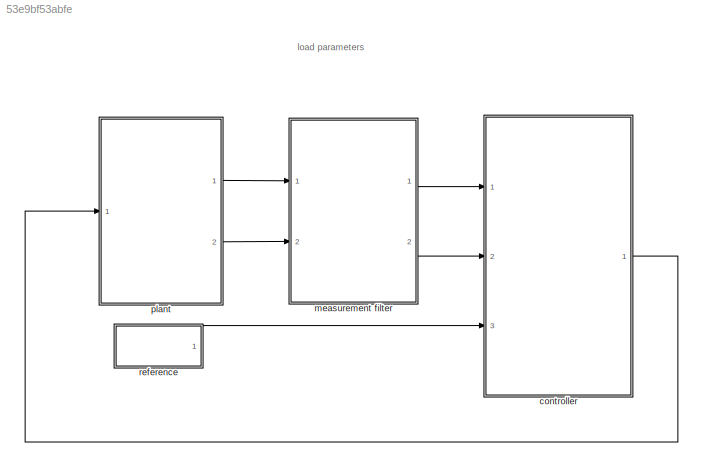
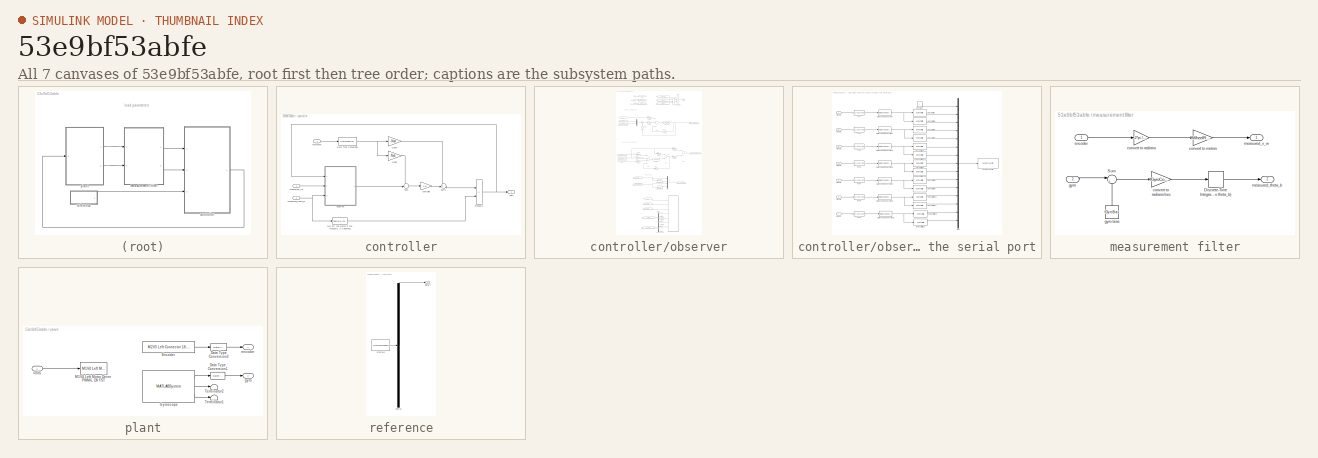
[diagram: thumbnail index - all 7 canvases of the model, root first then tree order]
MODEL slx_53e9bf53abfe
KIND model
CONFIG AbsTol = auto
CONFIG EnableMultiTasking = on
CONFIG FixedStep = auto
CONFIG MaxStep = auto
CONFIG MinStep = auto
CONFIG RelTol = 1e-3
CONFIG SampleTimeConstraint = Unconstrained
CONFIG Solver = ode45
CONFIG SolverName = ode45
CONFIG StartTime = 0.0
CONFIG StopTime = 10.0
BLOCK [SubSystem] controller
  Ports = [3, 1]
  RequestExecContextInheritance = off
  Variant = off
BLOCK [DataTypeConversion] controller/Data Type Conversion
  OutDataTypeStr = single
  RndMeth = Floor
  SaturateOnIntegerOverflow = off
BLOCK [Gain] controller/Gain3
  Gain = Nxd
  Multiplication = Matrix(K*u)
  OutDataTypeStr = Inherit: Inherit via internal rule
  ParamDataTypeStr = Inherit: Inherit via internal rule
  SaturateOnIntegerOverflow = off
BLOCK [Gain] controller/Gain4
  Gain = -Nud
  Multiplication = Matrix(K*u)
  OutDataTypeStr = Inherit: Inherit via internal rule
  ParamDataTypeStr = Inherit: Inherit via internal rule
  SaturateOnIntegerOverflow = off
BLOCK [Product] controller/Product1
  InputSameDT = off
  OutDataTypeStr = Inherit: Inherit via internal rule
  Ports = [2, 1]
  SaturateOnIntegerOverflow = off
BLOCK [Sum] controller/Sum
  IconShape = round
  InputSameDT = off
  Inputs = ++|
  OutDataTypeStr = Inherit: Inherit via internal rule
  Ports = [2, 1]
  SaturateOnIntegerOverflow = off
BLOCK [Sum] controller/Sum1
  IconShape = round
  InputSameDT = off
  Inputs = ++|
  OutDataTypeStr = Inherit: Inherit via internal rule
  Ports = [2, 1]
  SaturateOnIntegerOverflow = off
BLOCK [Gain] controller/controller
  Gain = Kd
  Multiplication = Matrix(K*u)
  OutDataTypeStr = Inherit: Inherit via internal rule
  ParamDataTypeStr = Inherit: Inherit via internal rule
  SaturateOnIntegerOverflow = off
BLOCK [Inport] controller/measured_theta_b 
  IconDisplay = Port number
  Port = 2
BLOCK [Inport] controller/measured_x_w
  IconDisplay = Port number
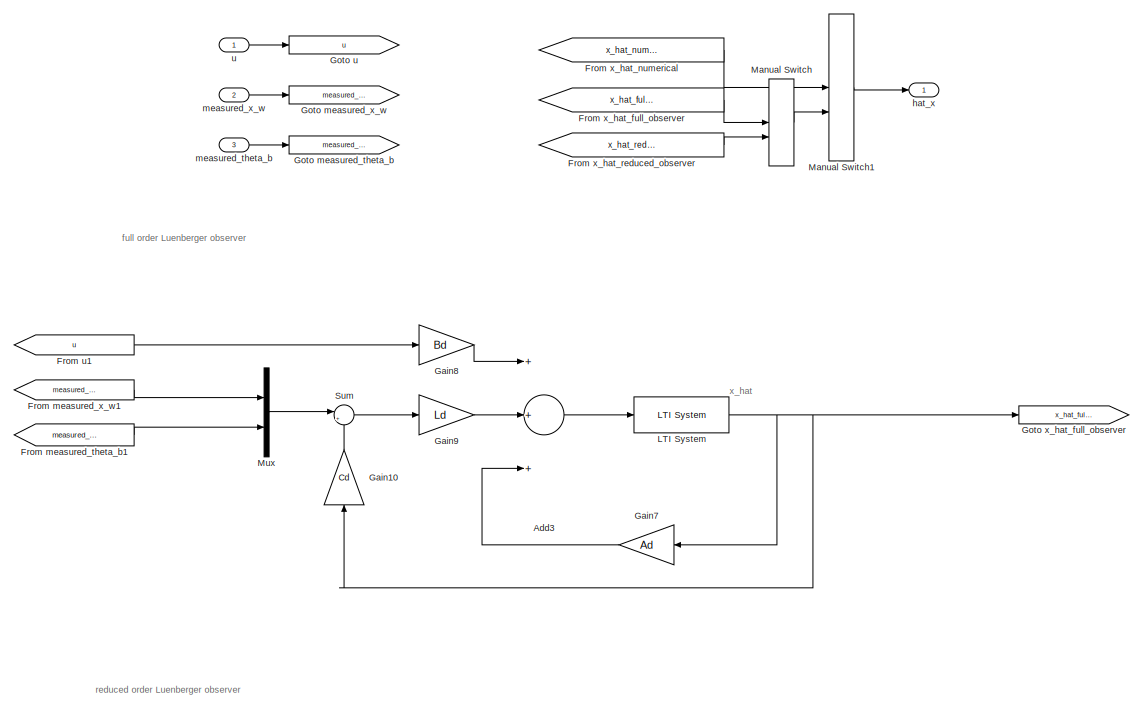
[diagram: controller/observer - part 1/3, full width, top band]
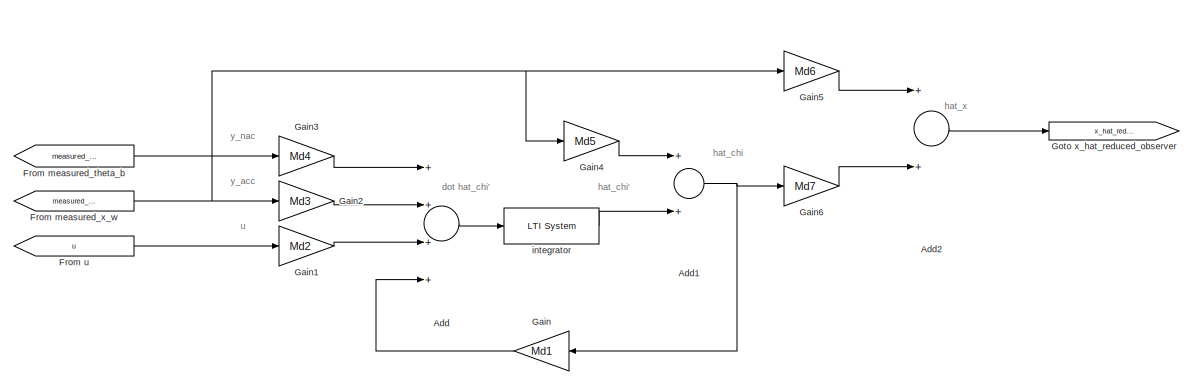
[diagram: controller/observer - part 2/3, full width, middle band]
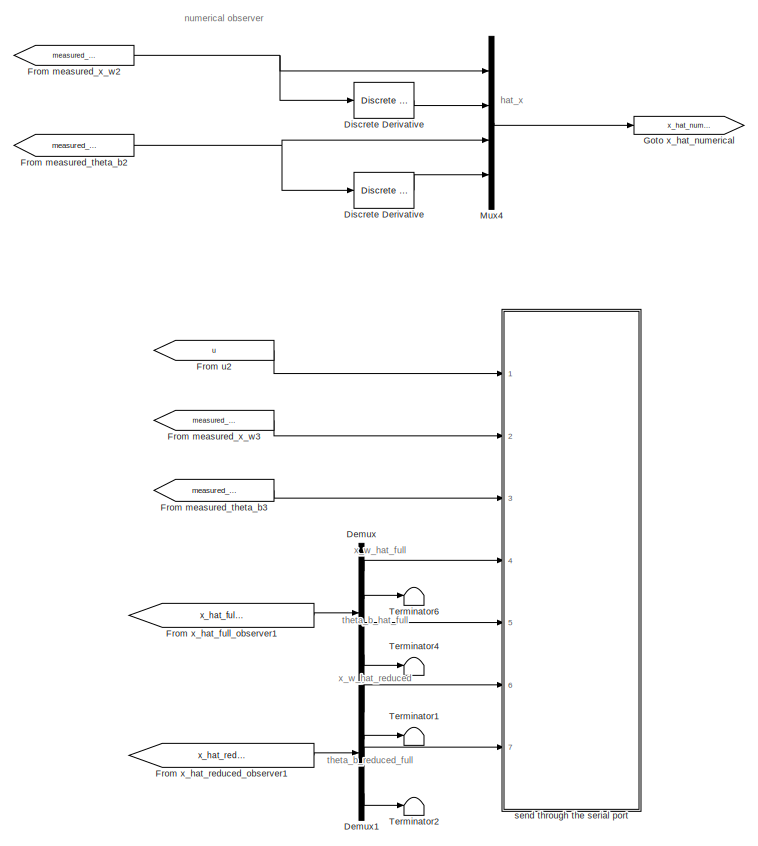
[diagram: controller/observer - part 3/3, bottom center region]
BLOCK [SubSystem] controller/observer
  Ports = [3, 1]
  RequestExecContextInheritance = off
  Variant = off
BLOCK [Sum] controller/observer/Add
  InputSameDT = off
  Inputs = ++++
  OutDataTypeStr = Inherit: Inherit via internal rule
  Ports = [4, 1]
  SaturateOnIntegerOverflow = off
BLOCK [Sum] controller/observer/Add1
  InputSameDT = off
  OutDataTypeStr = Inherit: Inherit via internal rule
  Ports = [2, 1]
  SaturateOnIntegerOverflow = off
BLOCK [Sum] controller/observer/Add2
  InputSameDT = off
  OutDataTypeStr = Inherit: Inherit via internal rule
  Ports = [2, 1]
  SaturateOnIntegerOverflow = off
BLOCK [Sum] controller/observer/Add3
  InputSameDT = off
  Inputs = +++
  OutDataTypeStr = Inherit: Inherit via internal rule
  Ports = [3, 1]
  SaturateOnIntegerOverflow = off
BLOCK [Demux] controller/observer/Demux
  DisplayOption = bar
  Ports = [1, 4]
BLOCK [Demux] controller/observer/Demux1
  DisplayOption = bar
  Ports = [1, 4]
BLOCK [Reference] controller/observer/Discrete Derivative  REF=simulink/Discrete/Discrete Derivative
  Ports = [1, 1]
  SourceBlock = simulink/Discrete/Discrete Derivative
  SourceProductBaseCode = SL
  SourceProductName = Simulink
  SourceType = Discrete Derivative
BLOCK [Reference] controller/observer/Discrete Derivative   REF=simulink/Discrete/Discrete Derivative
  Ports = [1, 1]
  SourceBlock = simulink/Discrete/Discrete Derivative
  SourceProductBaseCode = SL
  SourceProductName = Simulink
  SourceType = Discrete Derivative
BLOCK [From] controller/observer/From measured_theta_b
  GotoTag = measured_theta_b
BLOCK [From] controller/observer/From measured_theta_b1
  GotoTag = measured_theta_b
BLOCK [From] controller/observer/From measured_theta_b2
  GotoTag = measured_theta_b
BLOCK [From] controller/observer/From measured_theta_b3
  GotoTag = measured_theta_b
BLOCK [From] controller/observer/From measured_x_w
  GotoTag = measured_x_w
BLOCK [From] controller/observer/From measured_x_w1
  GotoTag = measured_x_w
BLOCK [From] controller/observer/From measured_x_w2
  GotoTag = measured_x_w
BLOCK [From] controller/observer/From measured_x_w3
  GotoTag = measured_x_w
BLOCK [From] controller/observer/From u
  GotoTag = u
BLOCK [From] controller/observer/From u1
  GotoTag = u
BLOCK [From] controller/observer/From u2
  GotoTag = u
BLOCK [From] controller/observer/From x_hat_full_observer
  GotoTag = x_hat_full_observer
BLOCK [From] controller/observer/From x_hat_full_observer1
  GotoTag = x_hat_full_observer
BLOCK [From] controller/observer/From x_hat_numerical
  GotoTag = x_hat_numerical
BLOCK [From] controller/observer/From x_hat_reduced_observer
  GotoTag = x_hat_reduced_observer
BLOCK [From] controller/observer/From x_hat_reduced_observer1
  GotoTag = x_hat_reduced_observer
BLOCK [Gain] controller/observer/Gain
  Gain = Md1
  Multiplication = Matrix(K*u)
  OutDataTypeStr = Inherit: Inherit via internal rule
  ParamDataTypeStr = Inherit: Inherit via internal rule
  SaturateOnIntegerOverflow = off
BLOCK [Gain] controller/observer/Gain1
  Gain = Md2
  Multiplication = Matrix(K*u)
  OutDataTypeStr = Inherit: Inherit via internal rule
  ParamDataTypeStr = Inherit: Inherit via internal rule
  SaturateOnIntegerOverflow = off
BLOCK [Gain] controller/observer/Gain10
  Gain = Cd
  Multiplication = Matrix(K*u)
  OutDataTypeStr = Inherit: Inherit via internal rule
  ParamDataTypeStr = Inherit: Inherit via internal rule
  SaturateOnIntegerOverflow = off
BLOCK [Gain] controller/observer/Gain2
  Gain = Md3
  Multiplication = Matrix(K*u)
  OutDataTypeStr = Inherit: Inherit via internal rule
  ParamDataTypeStr = Inherit: Inherit via internal rule
  SaturateOnIntegerOverflow = off
BLOCK [Gain] controller/observer/Gain3
  Gain = Md4
  Multiplication = Matrix(K*u)
  OutDataTypeStr = Inherit: Inherit via internal rule
  ParamDataTypeStr = Inherit: Inherit via internal rule
  SaturateOnIntegerOverflow = off
BLOCK [Gain] controller/observer/Gain4
  Gain = Md5
  Multiplication = Matrix(K*u)
  OutDataTypeStr = Inherit: Inherit via internal rule
  ParamDataTypeStr = Inherit: Inherit via internal rule
  SaturateOnIntegerOverflow = off
BLOCK [Gain] controller/observer/Gain5
  Gain = Md6
  Multiplication = Matrix(K*u)
  OutDataTypeStr = Inherit: Inherit via internal rule
  ParamDataTypeStr = Inherit: Inherit via internal rule
  SaturateOnIntegerOverflow = off
BLOCK [Gain] controller/observer/Gain6
  Gain = Md7
  Multiplication = Matrix(K*u)
  OutDataTypeStr = Inherit: Inherit via internal rule
  ParamDataTypeStr = Inherit: Inherit via internal rule
  SaturateOnIntegerOverflow = off
BLOCK [Gain] controller/observer/Gain7
  Gain = Ad
  Multiplication = Matrix(K*u)
  OutDataTypeStr = Inherit: Inherit via internal rule
  ParamDataTypeStr = Inherit: Inherit via internal rule
  SaturateOnIntegerOverflow = off
BLOCK [Gain] controller/observer/Gain8
  Gain = Bd
  Multiplication = Matrix(K*u)
  OutDataTypeStr = Inherit: Inherit via internal rule
  ParamDataTypeStr = Inherit: Inherit via internal rule
  SaturateOnIntegerOverflow = off
BLOCK [Gain] controller/observer/Gain9
  Gain = Ld
  Multiplication = Matrix(K*u)
  OutDataTypeStr = Inherit: Inherit via internal rule
  ParamDataTypeStr = Inherit: Inherit via internal rule
  SaturateOnIntegerOverflow = off
BLOCK [Goto] controller/observer/Goto measured_theta_b
  GotoTag = measured_theta_b
BLOCK [Goto] controller/observer/Goto measured_x_w
  GotoTag = measured_x_w
BLOCK [Goto] controller/observer/Goto u
  GotoTag = u
BLOCK [Goto] controller/observer/Goto x_hat_full_observer
  GotoTag = x_hat_full_observer
BLOCK [Goto] controller/observer/Goto x_hat_numerical
  GotoTag = x_hat_numerical
BLOCK [Goto] controller/observer/Goto x_hat_reduced_observer
  GotoTag = x_hat_reduced_observer
BLOCK [Reference] controller/observer/LTI System  REF=cstblocks/LTI System
  Ports = [1, 1]
  SourceBlock = cstblocks/LTI System
  SourceProductBaseCode = CT
  SourceProductName = Control System Toolbox
  SourceType = LTI Block
BLOCK [ManualSwitch] controller/observer/Manual Switch
BLOCK [ManualSwitch] controller/observer/Manual Switch1
BLOCK [Mux] controller/observer/Mux
  DisplayOption = bar
  Inputs = 2
  Ports = [2, 1]
BLOCK [Mux] controller/observer/Mux4
  DisplayOption = bar
  Ports = [4, 1]
BLOCK [Sum] controller/observer/Sum
  IconShape = round
  InputSameDT = off
  Inputs = |+-
  OutDataTypeStr = Inherit: Inherit via internal rule
  Ports = [2, 1]
  SaturateOnIntegerOverflow = off
BLOCK [Terminator] controller/observer/Terminator1
BLOCK [Terminator] controller/observer/Terminator2
BLOCK [Terminator] controller/observer/Terminator4
BLOCK [Terminator] controller/observer/Terminator6
BLOCK [Outport] controller/observer/hat_x
  IconDisplay = Port number
BLOCK [Reference] controller/observer/integrator  REF=cstblocks/LTI System
  Ports = [1, 1]
  SourceBlock = cstblocks/LTI System
  SourceProductBaseCode = CT
  SourceProductName = Control System Toolbox
  SourceType = LTI Block
BLOCK [Inport] controller/observer/measured_theta_b
  IconDisplay = Port number
  Port = 3
BLOCK [Inport] controller/observer/measured_x_w
  IconDisplay = Port number
  Port = 2
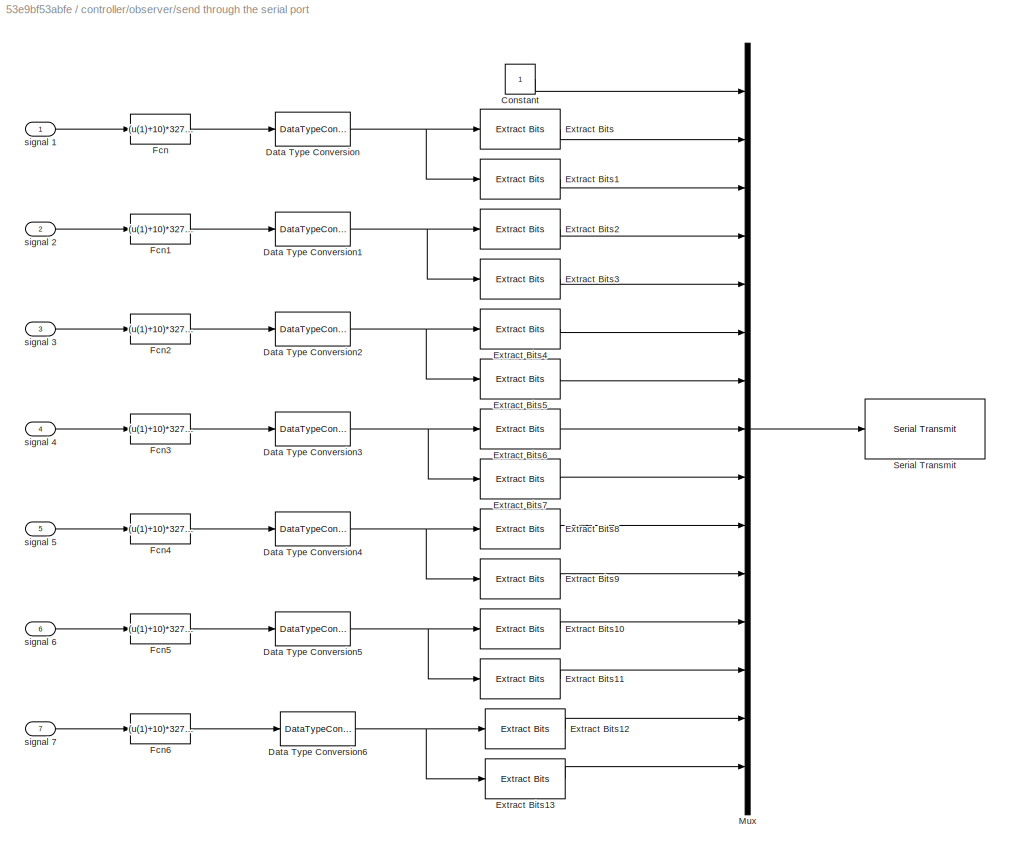
BLOCK [SubSystem] controller/observer/send through the serial port
  Ports = [7]
  RequestExecContextInheritance = off
  Variant = off
BLOCK [Constant] controller/observer/send through the serial port/Constant
  OutDataTypeStr = uint8
BLOCK [DataTypeConversion] controller/observer/send through the serial port/Data Type Conversion
  OutDataTypeStr = uint16
  RndMeth = Floor
  SaturateOnIntegerOverflow = off
BLOCK [DataTypeConversion] controller/observer/send through the serial port/Data Type Conversion1
  OutDataTypeStr = uint16
  RndMeth = Floor
  SaturateOnIntegerOverflow = off
BLOCK [DataTypeConversion] controller/observer/send through the serial port/Data Type Conversion2
  OutDataTypeStr = uint16
  RndMeth = Floor
  SaturateOnIntegerOverflow = off
BLOCK [DataTypeConversion] controller/observer/send through the serial port/Data Type Conversion3
  OutDataTypeStr = uint16
  RndMeth = Floor
  SaturateOnIntegerOverflow = off
BLOCK [DataTypeConversion] controller/observer/send through the serial port/Data Type Conversion4
  OutDataTypeStr = uint16
  RndMeth = Floor
  SaturateOnIntegerOverflow = off
BLOCK [DataTypeConversion] controller/observer/send through the serial port/Data Type Conversion5
  OutDataTypeStr = uint16
  RndMeth = Floor
  SaturateOnIntegerOverflow = off
BLOCK [DataTypeConversion] controller/observer/send through the serial port/Data Type Conversion6
  OutDataTypeStr = uint16
  RndMeth = Floor
  SaturateOnIntegerOverflow = off
BLOCK [Reference] controller/observer/send through the serial port/Extract Bits  REF=simulink/Logic and Bit
Operations/Extract Bits
  Ports = [1, 1]
  SourceBlock = simulink/Logic and Bit\nOperations/Extract Bits
  SourceProductBaseCode = SL
  SourceProductName = Simulink
  SourceType = Extract Bits
BLOCK [Reference] controller/observer/send through the serial port/Extract Bits1  REF=simulink/Logic and Bit
Operations/Extract Bits
  Ports = [1, 1]
  SourceBlock = simulink/Logic and Bit\nOperations/Extract Bits
  SourceProductBaseCode = SL
  SourceProductName = Simulink
  SourceType = Extract Bits
BLOCK [Reference] controller/observer/send through the serial port/Extract Bits10  REF=simulink/Logic and Bit
Operations/Extract Bits
  Ports = [1, 1]
  SourceBlock = simulink/Logic and Bit\nOperations/Extract Bits
  SourceProductBaseCode = SL
  SourceProductName = Simulink
  SourceType = Extract Bits
BLOCK [Reference] controller/observer/send through the serial port/Extract Bits11  REF=simulink/Logic and Bit
Operations/Extract Bits
  Ports = [1, 1]
  SourceBlock = simulink/Logic and Bit\nOperations/Extract Bits
  SourceProductBaseCode = SL
  SourceProductName = Simulink
  SourceType = Extract Bits
BLOCK [Reference] controller/observer/send through the serial port/Extract Bits12  REF=simulink/Logic and Bit
Operations/Extract Bits
  Ports = [1, 1]
  SourceBlock = simulink/Logic and Bit\nOperations/Extract Bits
  SourceProductBaseCode = SL
  SourceProductName = Simulink
  SourceType = Extract Bits
BLOCK [Reference] controller/observer/send through the serial port/Extract Bits13  REF=simulink/Logic and Bit
Operations/Extract Bits
  Ports = [1, 1]
  SourceBlock = simulink/Logic and Bit\nOperations/Extract Bits
  SourceProductBaseCode = SL
  SourceProductName = Simulink
  SourceType = Extract Bits
BLOCK [Reference] controller/observer/send through the serial port/Extract Bits2  REF=simulink/Logic and Bit
Operations/Extract Bits
  Ports = [1, 1]
  SourceBlock = simulink/Logic and Bit\nOperations/Extract Bits
  SourceProductBaseCode = SL
  SourceProductName = Simulink
  SourceType = Extract Bits
BLOCK [Reference] controller/observer/send through the serial port/Extract Bits3  REF=simulink/Logic and Bit
Operations/Extract Bits
  Ports = [1, 1]
  SourceBlock = simulink/Logic and Bit\nOperations/Extract Bits
  SourceProductBaseCode = SL
  SourceProductName = Simulink
  SourceType = Extract Bits
BLOCK [Reference] controller/observer/send through the serial port/Extract Bits4  REF=simulink/Logic and Bit
Operations/Extract Bits
  Ports = [1, 1]
  SourceBlock = simulink/Logic and Bit\nOperations/Extract Bits
  SourceProductBaseCode = SL
  SourceProductName = Simulink
  SourceType = Extract Bits
BLOCK [Reference] controller/observer/send through the serial port/Extract Bits5  REF=simulink/Logic and Bit
Operations/Extract Bits
  Ports = [1, 1]
  SourceBlock = simulink/Logic and Bit\nOperations/Extract Bits
  SourceProductBaseCode = SL
  SourceProductName = Simulink
  SourceType = Extract Bits
BLOCK [Reference] controller/observer/send through the serial port/Extract Bits6  REF=simulink/Logic and Bit
Operations/Extract Bits
  Ports = [1, 1]
  SourceBlock = simulink/Logic and Bit\nOperations/Extract Bits
  SourceProductBaseCode = SL
  SourceProductName = Simulink
  SourceType = Extract Bits
BLOCK [Reference] controller/observer/send through the serial port/Extract Bits7  REF=simulink/Logic and Bit
Operations/Extract Bits
  Ports = [1, 1]
  SourceBlock = simulink/Logic and Bit\nOperations/Extract Bits
  SourceProductBaseCode = SL
  SourceProductName = Simulink
  SourceType = Extract Bits
BLOCK [Reference] controller/observer/send through the serial port/Extract Bits8  REF=simulink/Logic and Bit
Operations/Extract Bits
  Ports = [1, 1]
  SourceBlock = simulink/Logic and Bit\nOperations/Extract Bits
  SourceProductBaseCode = SL
  SourceProductName = Simulink
  SourceType = Extract Bits
BLOCK [Reference] controller/observer/send through the serial port/Extract Bits9  REF=simulink/Logic and Bit
Operations/Extract Bits
  Ports = [1, 1]
  SourceBlock = simulink/Logic and Bit\nOperations/Extract Bits
  SourceProductBaseCode = SL
  SourceProductName = Simulink
  SourceType = Extract Bits
BLOCK [Fcn] controller/observer/send through the serial port/Fcn
  Expr = (u(1)+10)*3276.8
BLOCK [Fcn] controller/observer/send through the serial port/Fcn1
  Expr = (u(1)+10)*3276.8
BLOCK [Fcn] controller/observer/send through the serial port/Fcn2
  Expr = (u(1)+10)*3276.8
BLOCK [Fcn] controller/observer/send through the serial port/Fcn3
  Expr = (u(1)+10)*3276.8
BLOCK [Fcn] controller/observer/send through the serial port/Fcn4
  Expr = (u(1)+10)*3276.8
BLOCK [Fcn] controller/observer/send through the serial port/Fcn5
  Expr = (u(1)+10)*3276.8
BLOCK [Fcn] controller/observer/send through the serial port/Fcn6
  Expr = (u(1)+10)*3276.8
BLOCK [Mux] controller/observer/send through the serial port/Mux
  DisplayOption = bar
  Inputs = 15
  Ports = [15, 1]
BLOCK [Reference] controller/observer/send through the serial port/Serial Transmit  REF=arduinolib/Serial Transmit
  Ports = [1]
  SourceBlock = arduinolib/Serial Transmit
  SourceProductBaseCode = ARDUINO
  SourceProductName = Simulink Support Package for Arduino Hardware
  SourceType = Arduino Serial Transmit
BLOCK [Inport] controller/observer/send through the serial port/signal 1
  IconDisplay = Port number
BLOCK [Inport] controller/observer/send through the serial port/signal 2
  IconDisplay = Port number
  Port = 2
BLOCK [Inport] controller/observer/send through the serial port/signal 3
  IconDisplay = Port number
  Port = 3
BLOCK [Inport] controller/observer/send through the serial port/signal 4
  IconDisplay = Port number
  Port = 4
BLOCK [Inport] controller/observer/send through the serial port/signal 5
  IconDisplay = Port number
  Port = 5
BLOCK [Inport] controller/observer/send through the serial port/signal 6
  IconDisplay = Port number
  Port = 6
BLOCK [Inport] controller/observer/send through the serial port/signal 7
  IconDisplay = Port number
  Port = 7
BLOCK [Inport] controller/observer/u
  IconDisplay = Port number
BLOCK [Inport] controller/reference
  IconDisplay = Port number
  Port = 3
BLOCK [Fcn] controller/turn off the motor if the measured angle is greater than X degrees
  Expr = (abs(u(1))<0.75)
BLOCK [Outport] controller/volts
  IconDisplay = Port number
BLOCK [SubSystem] measurement filter
  Ports = [2, 2]
  RequestExecContextInheritance = off
  Variant = off
BLOCK [DiscreteIntegrator] measurement filter/Discrete-Time Integrator (convert from theta_b_dot to theta_b)
  ICPrevOutput = DiscIntNeverNeededParam
  ICPrevScaledInput = DiscIntNeverNeededParam
  OutDataTypeStr = Inherit: Inherit via back propagation
  Ports = [1, 1]
  SampleTime = fSamplingPeriod
BLOCK [Sum] measurement filter/Sum
  IconShape = round
  InputSameDT = off
  Inputs = |+-
  OutDataTypeStr = Inherit: Inherit via internal rule
  Ports = [2, 1]
  SaturateOnIntegerOverflow = off
BLOCK [Gain] measurement filter/convert to meters
  Gain = fWheelRadius
  ParamDataTypeStr = Inherit: Inherit via internal rule
  SaturateOnIntegerOverflow = off
BLOCK [Gain] measurement filter/convert to radians
  Gain = -2*pi / iNumberOfEncoderSteps
  ParamDataTypeStr = Inherit: Inherit via internal rule
  SaturateOnIntegerOverflow = off
BLOCK [Gain] measurement filter/convert to radians//sec
  Gain = fGyroConversionFactor * pi / 180
  ParamDataTypeStr = Inherit: Inherit via internal rule
  SaturateOnIntegerOverflow = off
BLOCK [Inport] measurement filter/encoder
  IconDisplay = Port number
BLOCK [Inport] measurement filter/gyro
  IconDisplay = Port number
  Port = 2
BLOCK [Constant] measurement filter/gyro bias
  OutDataTypeStr = single
  Value = fGyroBias
BLOCK [Outport] measurement filter/measured_theta_b
  IconDisplay = Port number
  Port = 2
BLOCK [Outport] measurement filter/measured_x_w
  IconDisplay = Port number
BLOCK [SubSystem] plant
  Ports = [1, 2]
  RequestExecContextInheritance = off
  Variant = off
BLOCK [DataTypeConversion] plant/Data Type Conversion1
  OutDataTypeStr = single
  RndMeth = Floor
  SaturateOnIntegerOverflow = off
BLOCK [DataTypeConversion] plant/Data Type Conversion2
  OutDataTypeStr = single
  RndMeth = Floor
  SaturateOnIntegerOverflow = off
BLOCK [Reference] plant/Encoder  REF=MinSegLibrary_M2V3/M2V3 Left Connector 18, 19
  Ports = [0, 1]
  SourceBlock = MinSegLibrary_M2V3/M2V3 Left Connector 18, 19
  SourceProductName = Rensselaer Arduino Support Package
  SourceType = Encoder_arduino
BLOCK [MATLABSystem] plant/Gyroscope
  DLPFmode = 0
  MaskDisplay = disp('soMPU6050Gyro');\nport_label('output',1,'xvel');\nport_label('output',2,'yvel');\nport_label('output',3,'zvel');
  MaskType = soMPU6050Gyro
  Ports = [0, 3]
  System = soMPU6050Gyro
BLOCK [Reference] plant/M1V4 Left Motor Driver PWM6, D8 FST  REF=MinSegLibrary_M2V3/M1V4 Left Motor Driver
PWM6, D8 FST
  Ports = [1]
  SourceBlock = MinSegLibrary_M2V3/M1V4 Left Motor Driver\nPWM6, D8 FST
  SourceProductName = Rensselaer Arduino Support Package
BLOCK [Terminator] plant/Terminator1
BLOCK [Terminator] plant/Terminator2
BLOCK [Outport] plant/encoder
  IconDisplay = Port number
BLOCK [Outport] plant/gyro
  IconDisplay = Port number
  Port = 2
BLOCK [Inport] plant/volts
  IconDisplay = Port number
BLOCK [SubSystem] reference
  ClipboardFcn = sigbuilder_block('clipboard');
  CloseFcn = sigbuilder_block('close');
  ContinueFcn = sigbuilder_block('continue');
  CopyFcn = sigbuilder_block('copy');
  DeleteFcn = sigbuilder_block('delete');
  LoadFcn = sigbuilder_block('load');
  MaskHideContents = on
  ModelCloseFcn = sigbuilder_block('modelClose');
  NameChangeFcn = sigbuilder_block('namechange');
  OpenFcn = sigbuilder_block('open',[437.6 199.2 550.4 400 ]);
  PauseFcn = sigbuilder_block('pause');
  Ports = [0, 1]
  PreSaveFcn = sigbuilder_block('preSave');
  RequestExecContextInheritance = off
  StartFcn = sigbuilder_block('start');
  StopFcn = sigbuilder_block('stop');
  Tag = STV Subsys
  Variant = off
BLOCK [Demux] reference/Demux
  Outputs = 1
  Ports = [1, 1]
  Tag = STV Demux
BLOCK [FromWorkspace] reference/FromWs
  SampleTime = 0
  Tag = STV FromWs
  VariableName = tuvar
  ZeroCross = on
BLOCK [Outport] reference/Signal 1
  IconDisplay = Port number
  Tag = STV Outport
ANNOTATION (root): load parameters
ANNOTATION controller/observer: dot hat_chi'
ANNOTATION controller/observer: full order Luenberger observer
ANNOTATION controller/observer: hat_chi
ANNOTATION controller/observer: hat_chi'
ANNOTATION controller/observer: hat_x
ANNOTATION controller/observer: numerical observer
ANNOTATION controller/observer: reduced order Luenberger observer
ANNOTATION controller/observer: theta_b_hat_full
ANNOTATION controller/observer: theta_b_reduced_full
ANNOTATION controller/observer: u
ANNOTATION controller/observer: x_hat
ANNOTATION controller/observer: x_w_hat_full
ANNOTATION controller/observer: x_w_hat_reduced
ANNOTATION controller/observer: y_acc
ANNOTATION controller/observer: y_nac
NET controller/Data Type Conversion:1 -> controller/Gain3:1, controller/Gain4:1
LINE controller/Gain3:1 -> controller/Sum:1
LINE controller/Gain4:1 -> controller/Sum1:1
NET controller/Product1:1 -> controller/observer:1, controller/volts:1
LINE controller/Sum1:1 -> controller/Product1:1
LINE controller/Sum:1 -> controller/controller:1
LINE controller/controller:1 -> controller/Sum1:2
NET controller/measured_theta_b :1 -> controller/observer:3, controller/turn off the motor if the measured angle is greater than X degrees:1
LINE controller/measured_x_w:1 -> controller/observer:2
NET controller/observer/Add1:1 -> controller/observer/Gain6:1, controller/observer/Gain:1
LINE controller/observer/Add2:1 -> controller/observer/Goto x_hat_reduced_observer:1
LINE controller/observer/Add3:1 -> controller/observer/LTI System:1
LINE controller/observer/Add:1 -> controller/observer/integrator:1
LINE controller/observer/Demux1:1 -> controller/observer/send through the serial port:6
LINE controller/observer/Demux1:2 -> controller/observer/Terminator1:1
LINE controller/observer/Demux1:3 -> controller/observer/send through the serial port:7
LINE controller/observer/Demux1:4 -> controller/observer/Terminator2:1
LINE controller/observer/Demux:1 -> controller/observer/send through the serial port:4
LINE controller/observer/Demux:2 -> controller/observer/Terminator6:1
LINE controller/observer/Demux:3 -> controller/observer/send through the serial port:5
LINE controller/observer/Demux:4 -> controller/observer/Terminator4:1
LINE controller/observer/Discrete Derivative :1 -> controller/observer/Mux4:4
LINE controller/observer/Discrete Derivative:1 -> controller/observer/Mux4:2
LINE controller/observer/From measured_theta_b1:1 -> controller/observer/Mux:2
NET controller/observer/From measured_theta_b2:1 -> controller/observer/Discrete Derivative :1, controller/observer/Mux4:3
LINE controller/observer/From measured_theta_b3:1 -> controller/observer/send through the serial port:3
LINE controller/observer/From measured_theta_b:1 -> controller/observer/Gain3:1
LINE controller/observer/From measured_x_w1:1 -> controller/observer/Mux:1
NET controller/observer/From measured_x_w2:1 -> controller/observer/Discrete Derivative:1, controller/observer/Mux4:1
LINE controller/observer/From measured_x_w3:1 -> controller/observer/send through the serial port:2
NET controller/observer/From measured_x_w:1 -> controller/observer/Gain2:1, controller/observer/Gain4:1, controller/observer/Gain5:1
LINE controller/observer/From u1:1 -> controller/observer/Gain8:1
LINE controller/observer/From u2:1 -> controller/observer/send through the serial port:1
LINE controller/observer/From u:1 -> controller/observer/Gain1:1
LINE controller/observer/From x_hat_full_observer1:1 -> controller/observer/Demux:1
LINE controller/observer/From x_hat_full_observer:1 -> controller/observer/Manual Switch:1
LINE controller/observer/From x_hat_numerical:1 -> controller/observer/Manual Switch1:1
LINE controller/observer/From x_hat_reduced_observer1:1 -> controller/observer/Demux1:1
LINE controller/observer/From x_hat_reduced_observer:1 -> controller/observer/Manual Switch:2
LINE controller/observer/Gain10:1 -> controller/observer/Sum:2
LINE controller/observer/Gain1:1 -> controller/observer/Add:3
LINE controller/observer/Gain2:1 -> controller/observer/Add:2
LINE controller/observer/Gain3:1 -> controller/observer/Add:1
LINE controller/observer/Gain4:1 -> controller/observer/Add1:1
LINE controller/observer/Gain5:1 -> controller/observer/Add2:1
LINE controller/observer/Gain6:1 -> controller/observer/Add2:2
LINE controller/observer/Gain7:1 -> controller/observer/Add3:3
LINE controller/observer/Gain8:1 -> controller/observer/Add3:1
LINE controller/observer/Gain9:1 -> controller/observer/Add3:2
LINE controller/observer/Gain:1 -> controller/observer/Add:4
NET controller/observer/LTI System:1 -> controller/observer/Gain10:1, controller/observer/Gain7:1, controller/observer/Goto x_hat_full_observer:1
LINE controller/observer/Manual Switch1:1 -> controller/observer/hat_x:1
LINE controller/observer/Manual Switch:1 -> controller/observer/Manual Switch1:2
LINE controller/observer/Mux4:1 -> controller/observer/Goto x_hat_numerical:1
LINE controller/observer/Mux:1 -> controller/observer/Sum:1
LINE controller/observer/Sum:1 -> controller/observer/Gain9:1
LINE controller/observer/integrator:1 -> controller/observer/Add1:2
LINE controller/observer/measured_theta_b:1 -> controller/observer/Goto measured_theta_b:1
LINE controller/observer/measured_x_w:1 -> controller/observer/Goto measured_x_w:1
LINE controller/observer/send through the serial port/Constant:1 -> controller/observer/send through the serial port/Mux:1
NET controller/observer/send through the serial port/Data Type Conversion1:1 -> controller/observer/send through the serial port/Extract Bits2:1, controller/observer/send through the serial port/Extract Bits3:1
NET controller/observer/send through the serial port/Data Type Conversion2:1 -> controller/observer/send through the serial port/Extract Bits4:1, controller/observer/send through the serial port/Extract Bits5:1
NET controller/observer/send through the serial port/Data Type Conversion3:1 -> controller/observer/send through the serial port/Extract Bits6:1, controller/observer/send through the serial port/Extract Bits7:1
NET controller/observer/send through the serial port/Data Type Conversion4:1 -> controller/observer/send through the serial port/Extract Bits8:1, controller/observer/send through the serial port/Extract Bits9:1
NET controller/observer/send through the serial port/Data Type Conversion5:1 -> controller/observer/send through the serial port/Extract Bits10:1, controller/observer/send through the serial port/Extract Bits11:1
NET controller/observer/send through the serial port/Data Type Conversion6:1 -> controller/observer/send through the serial port/Extract Bits12:1, controller/observer/send through the serial port/Extract Bits13:1
NET controller/observer/send through the serial port/Data Type Conversion:1 -> controller/observer/send through the serial port/Extract Bits1:1, controller/observer/send through the serial port/Extract Bits:1
LINE controller/observer/send through the serial port/Extract Bits10:1 -> controller/observer/send through the serial port/Mux:12
LINE controller/observer/send through the serial port/Extract Bits11:1 -> controller/observer/send through the serial port/Mux:13
LINE controller/observer/send through the serial port/Extract Bits12:1 -> controller/observer/send through the serial port/Mux:14
LINE controller/observer/send through the serial port/Extract Bits13:1 -> controller/observer/send through the serial port/Mux:15
LINE controller/observer/send through the serial port/Extract Bits1:1 -> controller/observer/send through the serial port/Mux:3
LINE controller/observer/send through the serial port/Extract Bits2:1 -> controller/observer/send through the serial port/Mux:4
LINE controller/observer/send through the serial port/Extract Bits3:1 -> controller/observer/send through the serial port/Mux:5
LINE controller/observer/send through the serial port/Extract Bits4:1 -> controller/observer/send through the serial port/Mux:6
LINE controller/observer/send through the serial port/Extract Bits5:1 -> controller/observer/send through the serial port/Mux:7
LINE controller/observer/send through the serial port/Extract Bits6:1 -> controller/observer/send through the serial port/Mux:8
LINE controller/observer/send through the serial port/Extract Bits7:1 -> controller/observer/send through the serial port/Mux:9
LINE controller/observer/send through the serial port/Extract Bits8:1 -> controller/observer/send through the serial port/Mux:10
LINE controller/observer/send through the serial port/Extract Bits9:1 -> controller/observer/send through the serial port/Mux:11
LINE controller/observer/send through the serial port/Extract Bits:1 -> controller/observer/send through the serial port/Mux:2
LINE controller/observer/send through the serial port/Fcn1:1 -> controller/observer/send through the serial port/Data Type Conversion1:1
LINE controller/observer/send through the serial port/Fcn2:1 -> controller/observer/send through the serial port/Data Type Conversion2:1
LINE controller/observer/send through the serial port/Fcn3:1 -> controller/observer/send through the serial port/Data Type Conversion3:1
LINE controller/observer/send through the serial port/Fcn4:1 -> controller/observer/send through the serial port/Data Type Conversion4:1
LINE controller/observer/send through the serial port/Fcn5:1 -> controller/observer/send through the serial port/Data Type Conversion5:1
LINE controller/observer/send through the serial port/Fcn6:1 -> controller/observer/send through the serial port/Data Type Conversion6:1
LINE controller/observer/send through the serial port/Fcn:1 -> controller/observer/send through the serial port/Data Type Conversion:1
LINE controller/observer/send through the serial port/Mux:1 -> controller/observer/send through the serial port/Serial Transmit:1
LINE controller/observer/send through the serial port/signal 1:1 -> controller/observer/send through the serial port/Fcn:1
LINE controller/observer/send through the serial port/signal 2:1 -> controller/observer/send through the serial port/Fcn1:1
LINE controller/observer/send through the serial port/signal 3:1 -> controller/observer/send through the serial port/Fcn2:1
LINE controller/observer/send through the serial port/signal 4:1 -> controller/observer/send through the serial port/Fcn3:1
LINE controller/observer/send through the serial port/signal 5:1 -> controller/observer/send through the serial port/Fcn4:1
LINE controller/observer/send through the serial port/signal 6:1 -> controller/observer/send through the serial port/Fcn5:1
LINE controller/observer/send through the serial port/signal 7:1 -> controller/observer/send through the serial port/Fcn6:1
LINE controller/observer/u:1 -> controller/observer/Goto u:1
LINE controller/observer:1 -> controller/Sum:2
LINE controller/reference:1 -> controller/Data Type Conversion:1
LINE controller/turn off the motor if the measured angle is greater than X degrees:1 -> controller/Product1:2
LINE controller:1 -> plant:1
LINE measurement filter/Discrete-Time Integrator (convert from theta_b_dot to theta_b):1 -> measurement filter/measured_theta_b:1
LINE measurement filter/Sum:1 -> measurement filter/convert to radians//sec:1
LINE measurement filter/convert to meters:1 -> measurement filter/measured_x_w:1
LINE measurement filter/convert to radians//sec:1 -> measurement filter/Discrete-Time Integrator (convert from theta_b_dot to theta_b):1
LINE measurement filter/convert to radians:1 -> measurement filter/convert to meters:1
LINE measurement filter/encoder:1 -> measurement filter/convert to radians:1
LINE measurement filter/gyro bias:1 -> measurement filter/Sum:2
LINE measurement filter/gyro:1 -> measurement filter/Sum:1
LINE measurement filter:1 -> controller:1
LINE measurement filter:2 -> controller:2
LINE plant/Data Type Conversion1:1 -> plant/gyro:1
LINE plant/Data Type Conversion2:1 -> plant/encoder:1
LINE plant/Encoder:1 -> plant/Data Type Conversion2:1
LINE plant/Gyroscope:1 -> plant/Data Type Conversion1:1
LINE plant/Gyroscope:2 -> plant/Terminator2:1
LINE plant/Gyroscope:3 -> plant/Terminator1:1
LINE plant/volts:1 -> plant/M1V4 Left Motor Driver PWM6, D8 FST:1
LINE plant:1 -> measurement filter:1
LINE plant:2 -> measurement filter:2
LINE reference:1 -> controller:3
note: NET lines group one-source signal fan-out (src -> all destinations, sorted); 1:1 wires keep LINE
